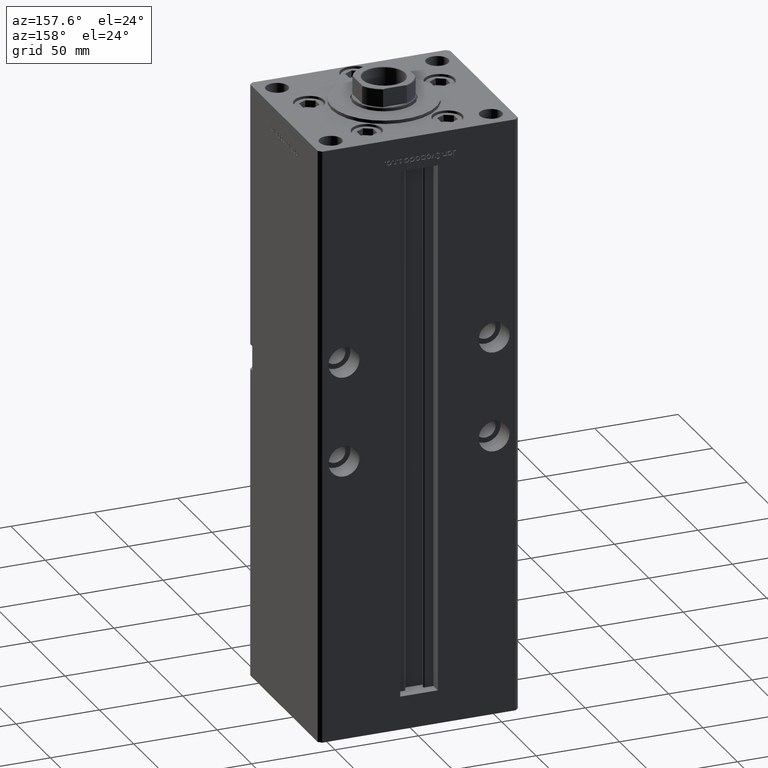
[diagram: clean part render]
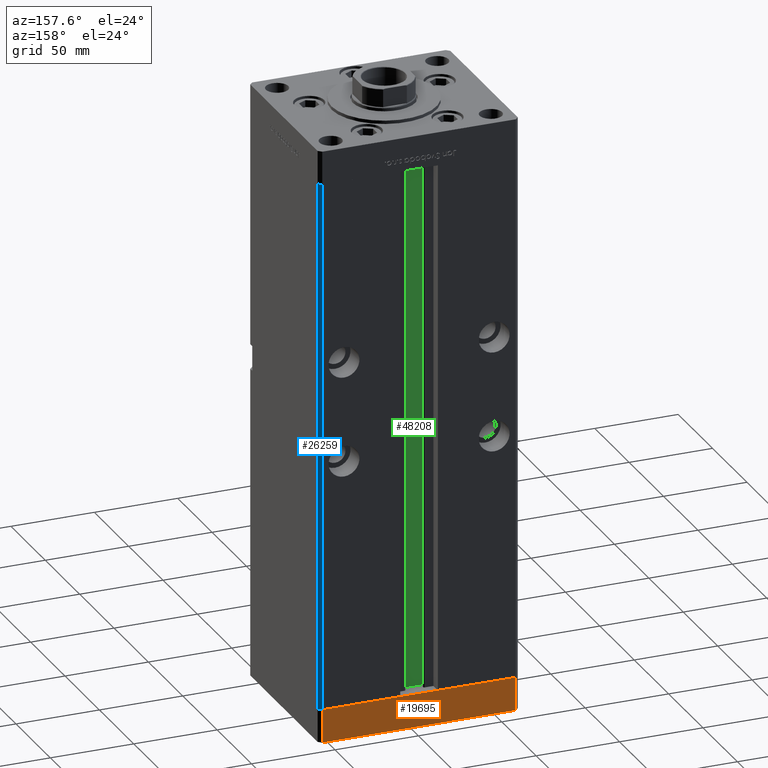
[diagram: same view with three faces highlighted in distinct colors, each labeled with its STEP entity id]
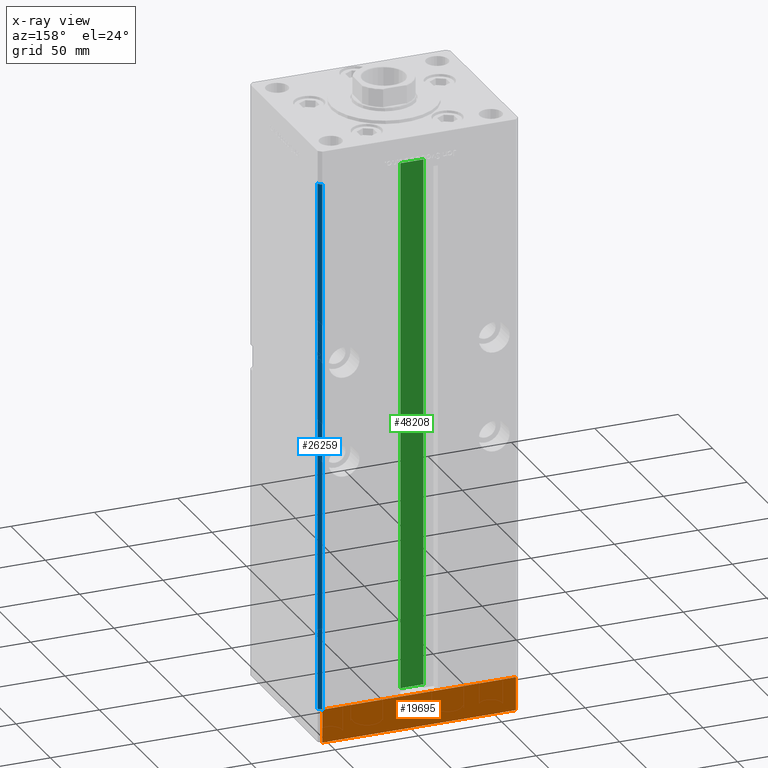
[diagram: x-ray of the same camera — body ghosted, the three highlighted faces saturated]
A machine part, auxiliary view with three faces highlighted in distinct colors.
The next image is the same camera in x-ray (body ghosted, the three faces saturated) — at least one of them is partly hidden behind the body in this view.
Their STEP definitions:

[orange] entity #19695 — the highlighted planar face has unit normal (-0, 1, 0).
#1360 = VECTOR ( 'NONE', #31808, 1000.000000000000000 ) ;
#1754 = VERTEX_POINT ( 'NONE', #10434 ) ;
#2481 = CARTESIAN_POINT ( 'NONE',  ( -57.99999999999999289, 50.99999999999997868, -20.00000000000000000 ) ) ;
#2874 = VECTOR ( 'NONE', #34976, 1000.000000000000000 ) ;
#5639 = VERTEX_POINT ( 'NONE', #23277 ) ;
#6584 = CARTESIAN_POINT ( 'NONE',  ( 57.99999999999993605, 51.00000000000000711, -20.00000000000000000 ) ) ;
#8126 = EDGE_CURVE ( 'NONE', #36289, #1754, #19776, .T. ) ;
#10434 = CARTESIAN_POINT ( 'NONE',  ( -57.99999999999999289, 50.99999999999997868, 0.000000000000000000 ) ) ;
#12419 = ORIENTED_EDGE ( 'NONE', *, *, #43819, .F. ) ;
#12447 = CARTESIAN_POINT ( 'NONE',  ( -57.99999999999999289, 50.99999999999997868, -20.00000000000000000 ) ) ;
#15413 = CARTESIAN_POINT ( 'NONE',  ( 57.99999999999993605, 51.00000000000000711, -20.00000000000000000 ) ) ;
#17664 = EDGE_CURVE ( 'NONE', #5639, #19921, #19943, .T. ) ;
#18247 = CARTESIAN_POINT ( 'NONE',  ( 57.99999999999993605, 51.00000000000000711, 0.000000000000000000 ) ) ;
#19125 = LINE ( 'NONE', #2481, #2874 ) ;
#19695 = ADVANCED_FACE ( 'NONE', ( #22447 ), #39363, .T. ) ;
#19776 = LINE ( 'NONE', #18247, #40174 ) ;
#19921 = VERTEX_POINT ( 'NONE', #12447 ) ;
#19943 = LINE ( 'NONE', #35537, #24899 ) ;
#22447 = FACE_OUTER_BOUND ( 'NONE', #23248, .T. ) ;
#23248 = EDGE_LOOP ( 'NONE', ( #25532, #12419, #51218, #28738 ) ) ;
#23277 = CARTESIAN_POINT ( 'NONE',  ( 57.99999999999993605, 51.00000000000000711, -20.00000000000000000 ) ) ;
#24899 = VECTOR ( 'NONE', #31514, 1000.000000000000000 ) ;
#25532 = ORIENTED_EDGE ( 'NONE', *, *, #8126, .F. ) ;
#28738 = ORIENTED_EDGE ( 'NONE', *, *, #37698, .T. ) ;
#29122 = CARTESIAN_POINT ( 'NONE',  ( 57.99999999999993605, 51.00000000000000711, 0.000000000000000000 ) ) ;
#31514 = DIRECTION ( 'NONE',  ( -1.000000000000000000, -2.392722035830079958E-16, 0.000000000000000000 ) ) ;
#31808 = DIRECTION ( 'NONE',  ( 0.000000000000000000, 0.000000000000000000, 1.000000000000000000 ) ) ;
#34976 = DIRECTION ( 'NONE',  ( 0.000000000000000000, 0.000000000000000000, 1.000000000000000000 ) ) ;
#35537 = CARTESIAN_POINT ( 'NONE',  ( 57.99999999999993605, 51.00000000000000711, -20.00000000000000000 ) ) ;
#36157 = DIRECTION ( 'NONE',  ( -1.000000000000000000, -2.392722035830079958E-16, 0.000000000000000000 ) ) ;
#36289 = VERTEX_POINT ( 'NONE', #29122 ) ;
#37698 = EDGE_CURVE ( 'NONE', #19921, #1754, #19125, .T. ) ;
#38824 = DIRECTION ( 'NONE',  ( -1.000000000000000000, -2.392722035830079958E-16, 0.000000000000000000 ) ) ;
#39363 = PLANE ( 'NONE',  #42106 ) ;
#40174 = VECTOR ( 'NONE', #36157, 1000.000000000000000 ) ;
#42106 = AXIS2_PLACEMENT_3D ( 'NONE', #6584, #47412, #38824 ) ;
#43819 = EDGE_CURVE ( 'NONE', #5639, #36289, #52200, .T. ) ;
#47412 = DIRECTION ( 'NONE',  ( -2.392722035830079958E-16, 1.000000000000000000, 0.000000000000000000 ) ) ;
#51218 = ORIENTED_EDGE ( 'NONE', *, *, #17664, .T. ) ;
#52200 = LINE ( 'NONE', #15413, #1360 ) ;

[blue] entity #26259 — the highlighted planar face has unit normal (0.7071, 0.7071, 0).
#1166 = EDGE_CURVE ( 'NONE', #35978, #45070, #27231, .T. ) ;
#3070 = CARTESIAN_POINT ( 'NONE',  ( 57.99999999999999289, 51.00000000000000711, 318.5000000000000000 ) ) ;
#3078 = DIRECTION ( 'NONE',  ( -0.7071067811865500152, 0.7071067811865451302, 0.000000000000000000 ) ) ;
#6017 = LINE ( 'NONE', #22410, #42074 ) ;
#6540 = VECTOR ( 'NONE', #6807, 1000.000000000000000 ) ;
#6548 = PLANE ( 'NONE',  #31833 ) ;
#6807 = DIRECTION ( 'NONE',  ( -0.000000000000000000, -0.000000000000000000, -1.000000000000000000 ) ) ;
#7464 = ORIENTED_EDGE ( 'NONE', *, *, #47976, .F. ) ;
#8485 = CARTESIAN_POINT ( 'NONE',  ( 57.99999999999999289, 51.00000000000000711, 0.000000000000000000 ) ) ;
#11105 = DIRECTION ( 'NONE',  ( 0.7071067811865451302, 0.7071067811865500152, -0.000000000000000000 ) ) ;
#12845 = DIRECTION ( 'NONE',  ( 0.7071067811865500152, -0.7071067811865451302, 0.000000000000000000 ) ) ;
#13299 = EDGE_CURVE ( 'NONE', #42363, #22154, #16489, .T. ) ;
#14309 = VECTOR ( 'NONE', #12845, 1000.000000000000114 ) ;
#15148 = CARTESIAN_POINT ( 'NONE',  ( 57.99999999999999289, 51.00000000000000711, 318.5000000000000000 ) ) ;
#16489 = LINE ( 'NONE', #20263, #20452 ) ;
#17906 = CARTESIAN_POINT ( 'NONE',  ( 57.99999999999999289, 51.00000000000000711, 318.5000000000000000 ) ) ;
#20263 = CARTESIAN_POINT ( 'NONE',  ( 60.00000000000001421, 49.00000000000000000, 318.5000000000000000 ) ) ;
#20452 = VECTOR ( 'NONE', #45755, 1000.000000000000000 ) ;
#22154 = VERTEX_POINT ( 'NONE', #44238 ) ;
#22410 = CARTESIAN_POINT ( 'NONE',  ( 57.99999999999999289, 51.00000000000000711, 318.5000000000000000 ) ) ;
#23222 = ORIENTED_EDGE ( 'NONE', *, *, #26166, .T. ) ;
#25649 = DIRECTION ( 'NONE',  ( 0.7071067811865500152, -0.7071067811865451302, 0.000000000000000000 ) ) ;
#26166 = EDGE_CURVE ( 'NONE', #35978, #42363, #6017, .T. ) ;
#26259 = ADVANCED_FACE ( 'NONE', ( #43349 ), #6548, .T. ) ;
#27231 = LINE ( 'NONE', #3070, #6540 ) ;
#28451 = CARTESIAN_POINT ( 'NONE',  ( 57.99999999999999289, 51.00000000000000711, 0.000000000000000000 ) ) ;
#28966 = LINE ( 'NONE', #28451, #14309 ) ;
#29492 = EDGE_LOOP ( 'NONE', ( #7464, #33171, #23222, #40253 ) ) ;
#31833 = AXIS2_PLACEMENT_3D ( 'NONE', #15148, #11105, #3078 ) ;
#33171 = ORIENTED_EDGE ( 'NONE', *, *, #1166, .F. ) ;
#35978 = VERTEX_POINT ( 'NONE', #17906 ) ;
#40253 = ORIENTED_EDGE ( 'NONE', *, *, #13299, .T. ) ;
#42074 = VECTOR ( 'NONE', #25649, 1000.000000000000114 ) ;
#42363 = VERTEX_POINT ( 'NONE', #45710 ) ;
#43349 = FACE_OUTER_BOUND ( 'NONE', #29492, .T. ) ;
#44238 = CARTESIAN_POINT ( 'NONE',  ( 60.00000000000001421, 49.00000000000000000, 0.000000000000000000 ) ) ;
#45070 = VERTEX_POINT ( 'NONE', #8485 ) ;
#45710 = CARTESIAN_POINT ( 'NONE',  ( 60.00000000000001421, 49.00000000000000000, 318.5000000000000000 ) ) ;
#45755 = DIRECTION ( 'NONE',  ( -0.000000000000000000, -0.000000000000000000, -1.000000000000000000 ) ) ;
#47976 = EDGE_CURVE ( 'NONE', #45070, #22154, #28966, .T. ) ;

[green] entity #48208 — the highlighted planar face has unit normal (0, -1, 0).
#942 = DIRECTION ( 'NONE',  ( -1.000000000000000000, 0.000000000000000000, 0.000000000000000000 ) ) ;
#5484 = EDGE_LOOP ( 'NONE', ( #21435, #42152, #10372, #34406 ) ) ;
#6504 = DIRECTION ( 'NONE',  ( -0.000000000000000000, -0.000000000000000000, 1.000000000000000000 ) ) ;
#7081 = LINE ( 'NONE', #43085, #12336 ) ;
#7183 = DIRECTION ( 'NONE',  ( 0.000000000000000000, 0.000000000000000000, -1.000000000000000000 ) ) ;
#9489 = CARTESIAN_POINT ( 'NONE',  ( 6.876153656360465050, 40.49999999999987210, 0.000000000000000000 ) ) ;
#10372 = ORIENTED_EDGE ( 'NONE', *, *, #33625, .T. ) ;
#11101 = EDGE_CURVE ( 'NONE', #18208, #23351, #30690, .T. ) ;
#12336 = VECTOR ( 'NONE', #39056, 1000.000000000000000 ) ;
#13464 = AXIS2_PLACEMENT_3D ( 'NONE', #15249, #32698, #7183 ) ;
#15249 = CARTESIAN_POINT ( 'NONE',  ( 6.876153656360465050, 40.49999999999987210, 0.000000000000000000 ) ) ;
#17721 = VECTOR ( 'NONE', #942, 1000.000000000000000 ) ;
#17919 = LINE ( 'NONE', #50937, #26013 ) ;
#18208 = VERTEX_POINT ( 'NONE', #9489 ) ;
#21435 = ORIENTED_EDGE ( 'NONE', *, *, #11101, .F. ) ;
#23351 = VERTEX_POINT ( 'NONE', #50705 ) ;
#25644 = CARTESIAN_POINT ( 'NONE',  ( 0.000000000000000000, 40.49999999999987210, 318.5000000000000000 ) ) ;
#26013 = VECTOR ( 'NONE', #34311, 1000.000000000000000 ) ;
#29548 = CARTESIAN_POINT ( 'NONE',  ( -6.876153656360465050, 40.49999999999987210, 318.5000000000000000 ) ) ;
#30468 = LINE ( 'NONE', #25644, #17721 ) ;
#30690 = LINE ( 'NONE', #50562, #47836 ) ;
#32698 = DIRECTION ( 'NONE',  ( 0.000000000000000000, -1.000000000000000000, -0.000000000000000000 ) ) ;
#33625 = EDGE_CURVE ( 'NONE', #49527, #38015, #17919, .T. ) ;
#34311 = DIRECTION ( 'NONE',  ( -0.000000000000000000, -0.000000000000000000, 1.000000000000000000 ) ) ;
#34406 = ORIENTED_EDGE ( 'NONE', *, *, #47105, .F. ) ;
#35666 = FACE_OUTER_BOUND ( 'NONE', #5484, .T. ) ;
#38015 = VERTEX_POINT ( 'NONE', #29548 ) ;
#39056 = DIRECTION ( 'NONE',  ( 1.000000000000000000, -0.000000000000000000, -0.000000000000000000 ) ) ;
#40016 = EDGE_CURVE ( 'NONE', #49527, #18208, #7081, .T. ) ;
#42152 = ORIENTED_EDGE ( 'NONE', *, *, #40016, .F. ) ;
#42263 = CARTESIAN_POINT ( 'NONE',  ( -6.876153656360465050, 40.49999999999987210, 0.000000000000000000 ) ) ;
#43085 = CARTESIAN_POINT ( 'NONE',  ( 6.876153656360465050, 40.49999999999987210, 0.000000000000000000 ) ) ;
#47105 = EDGE_CURVE ( 'NONE', #23351, #38015, #30468, .T. ) ;
#47836 = VECTOR ( 'NONE', #6504, 1000.000000000000000 ) ;
#48208 = ADVANCED_FACE ( 'NONE', ( #35666 ), #52037, .F. ) ;
#49527 = VERTEX_POINT ( 'NONE', #42263 ) ;
#50562 = CARTESIAN_POINT ( 'NONE',  ( 6.876153656360465050, 40.49999999999987210, 0.000000000000000000 ) ) ;
#50705 = CARTESIAN_POINT ( 'NONE',  ( 6.876153656360465050, 40.49999999999987210, 318.5000000000000000 ) ) ;
#50937 = CARTESIAN_POINT ( 'NONE',  ( -6.876153656360465050, 40.49999999999987210, 0.000000000000000000 ) ) ;
#52037 = PLANE ( 'NONE',  #13464 ) ;